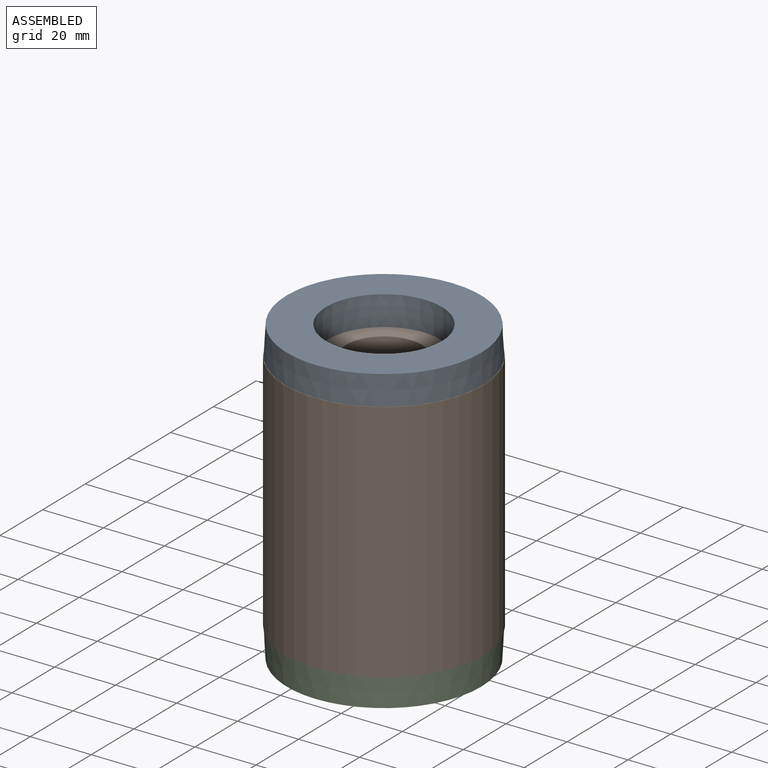
[diagram: assembled view]
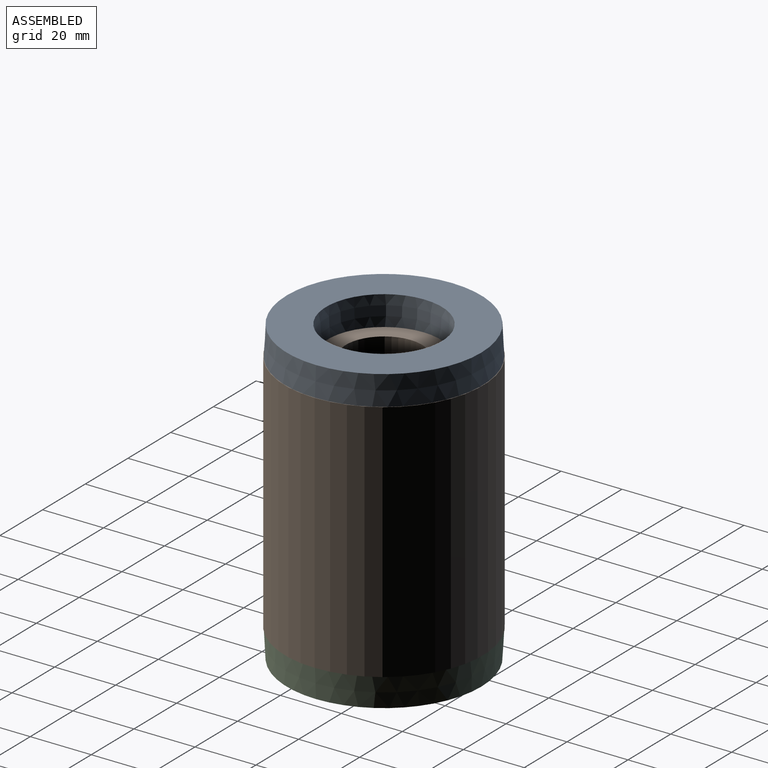
[diagram: assembled view, second angle]
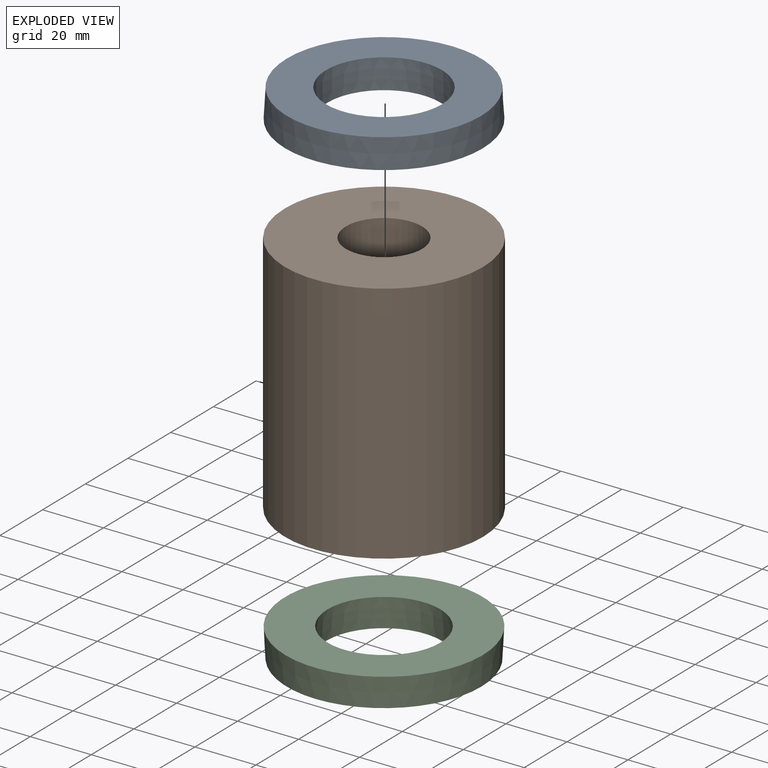
[diagram: exploded view]
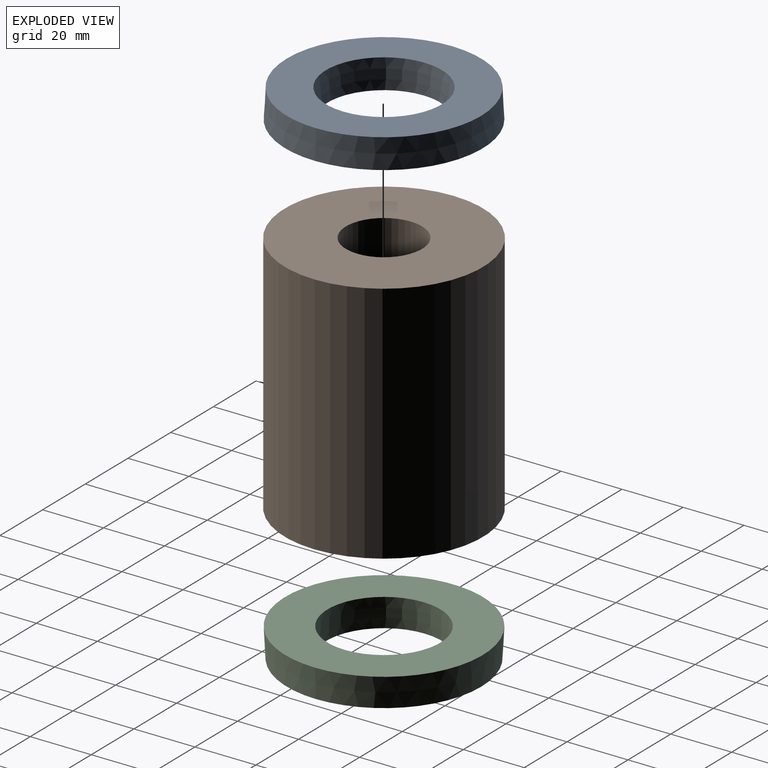
[diagram: exploded view, second angle]
ASSEMBLY  parts=3 mates=2
PART A: 4 faces, bbox 64.7x64.7x9.5 mm
  f0: cone r=19mm half-angle=3deg, axis (0,0,1), area 1120.7mm2, adj f1,f3
  f1: plane 64.7x64.7mm, normal (0,0,-1), area 2212.5mm2, adj f0,f2
  f2: cone r=32.35mm half-angle=3deg, axis (0,0,-1), area 1918.7mm2, adj f1,f3
  f3: plane 63.7x63.7mm, normal (0,0,1), area 2052.8mm2, adj f0,f2
PART B: 8 faces, bbox 65x65x80 mm
  f0: plane 65x65mm, normal (0,0,1), area 2827.4mm2, adj f1,f7
  f1: cylinder r=12.5mm len=25mm, axis (0,0,1), area 1374.4mm2, adj f0,f2
  f2: plane 25x25mm, normal (0,0,1), area 176.7mm2, adj f1,f3
  f3: cylinder r=10mm len=45mm, axis (0,0,1), area 2827.4mm2, adj f2,f4
  f4: plane 25x25mm, normal (0,0,-1), area 176.7mm2, adj f3,f5
  f5: cylinder r=12.5mm len=25mm, axis (0,0,1), area 1374.4mm2, adj f4,f6
  f6: plane 65x65mm, normal (0,0,-1), area 2827.4mm2, adj f5,f7
  f7: cylinder r=32.5mm len=80mm, axis (0,0,1), area 16336.3mm2, adj f0,f6
PART C: 4 faces, bbox 64.7x64.7x9.5 mm
  f0: cone r=32.35mm half-angle=3deg, axis (0,0,1), area 1918.7mm2, adj f1,f3
  f1: plane 64.7x64.7mm, normal (0,0,1), area 2212.5mm2, adj f0,f2
  f2: cone r=19mm half-angle=3deg, axis (0,0,-1), area 1120.7mm2, adj f1,f3
  f3: plane 63.7x63.7mm, normal (0,0,-1), area 2052.8mm2, adj f0,f2
PLACE A at identity
PLACE B at identity fixed
PLACE C at identity
MATE revolute C.f0 <-> B.f1  axis (0,0,1) through (0,0,-40)mm
MATE revolute B.f1 <-> A.f0  axis (0,0,1) through (0,0,40)mm
